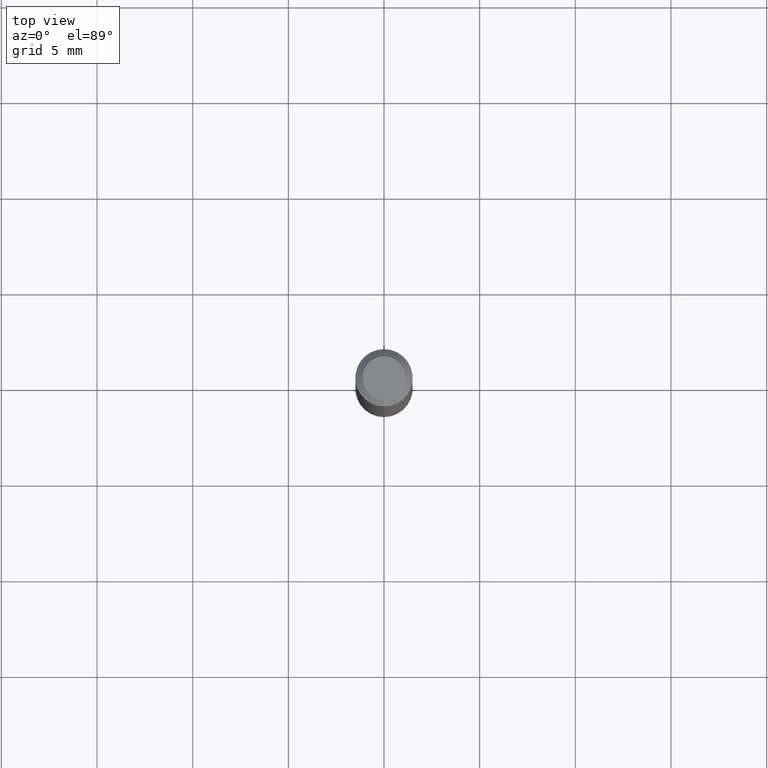
[diagram: clean part render]
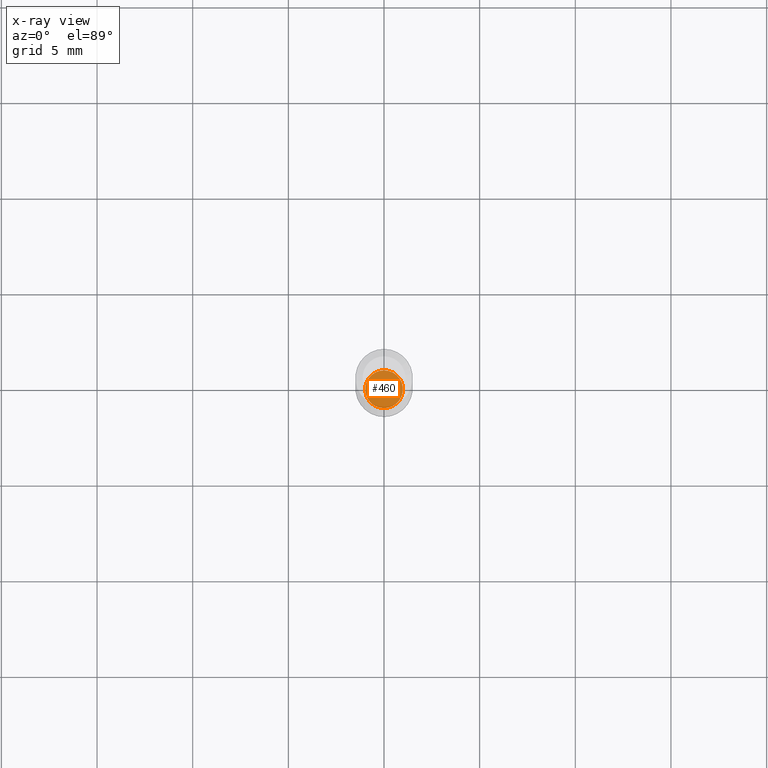
[diagram: x-ray — body ghosted, one internal face saturated and labeled with its STEP entity id]
A machine part, top view, then the same camera in x-ray: the body is ghosted and one INTERNAL B-rep face — a face not visible from any outside direction — is saturated and labeled: STEP entity #460.
In plain terms, the highlighted planar face has unit normal (-0, 0, 1).
Its self-contained STEP definition (entity closure, byte-faithful):
#21 = CARTESIAN_POINT ( 'NONE',  ( 3.369818162021092251E-29, -4.811315492436009059E-15, -1.377999999999999892 ) ) ;
#37 = CIRCLE ( 'NONE', #225, 0.03885000000000000259 ) ;
#73 = DIRECTION ( 'NONE',  ( -6.982962677686265133E-15, -1.000000000000000000, 0.000000000000000000 ) ) ;
#109 = DIRECTION ( 'NONE',  ( -6.982962677686265133E-15, -1.000000000000000000, 0.000000000000000000 ) ) ;
#163 = CIRCLE ( 'NONE', #315, 0.03885000000000000259 ) ;
#181 = CARTESIAN_POINT ( 'NONE',  ( 3.369818162021092251E-29, -4.811315492436009059E-15, -1.377999999999999892 ) ) ;
#218 = DIRECTION ( 'NONE',  ( -2.445441336735190408E-29, 3.491520676658932537E-15, 1.000000000000000000 ) ) ;
#225 = AXIS2_PLACEMENT_3D ( 'NONE', #377, #381, #73 ) ;
#248 = ORIENTED_EDGE ( 'NONE', *, *, #493, .F. ) ;
#250 = AXIS2_PLACEMENT_3D ( 'NONE', #21, #456, #296 ) ;
#287 = EDGE_LOOP ( 'NONE', ( #248, #425 ) ) ;
#296 = DIRECTION ( 'NONE',  ( -6.982962677686265922E-15, -1.000000000000000000, 3.491520676658932931E-15 ) ) ;
#315 = AXIS2_PLACEMENT_3D ( 'NONE', #181, #218, #109 ) ;
#330 = PLANE ( 'NONE',  #250 ) ;
#373 = VERTEX_POINT ( 'NONE', #505 ) ;
#374 = FACE_OUTER_BOUND ( 'NONE', #287, .T. ) ;
#377 = CARTESIAN_POINT ( 'NONE',  ( 3.369818162021092251E-29, -4.811315492436009059E-15, -1.377999999999999892 ) ) ;
#381 = DIRECTION ( 'NONE',  ( -2.445441336735190408E-29, 3.491520676658932537E-15, 1.000000000000000000 ) ) ;
#391 = VERTEX_POINT ( 'NONE', #499 ) ;
#425 = ORIENTED_EDGE ( 'NONE', *, *, #502, .F. ) ;
#456 = DIRECTION ( 'NONE',  ( -2.445441336735189847E-29, 3.491520676658932931E-15, 1.000000000000000000 ) ) ;
#460 = ADVANCED_FACE ( 'NONE', ( #374 ), #330, .F. ) ;
#493 = EDGE_CURVE ( 'NONE', #391, #373, #163, .T. ) ;
#499 = CARTESIAN_POINT ( 'NONE',  ( -2.712881000280777422E-16, -0.03885000000000481818, -1.377999999999999892 ) ) ;
#502 = EDGE_CURVE ( 'NONE', #373, #391, #37, .T. ) ;
#505 = CARTESIAN_POINT ( 'NONE',  ( 2.778222096822325220E-16, 0.03884999999999518699, -1.377999999999999892 ) ) ;